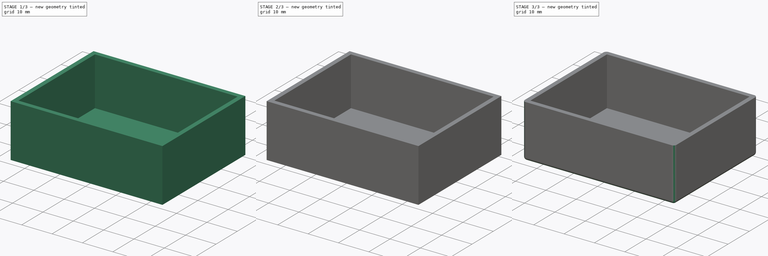
[diagram: build sequence overview — one tinted view per stage of 3, left to right]
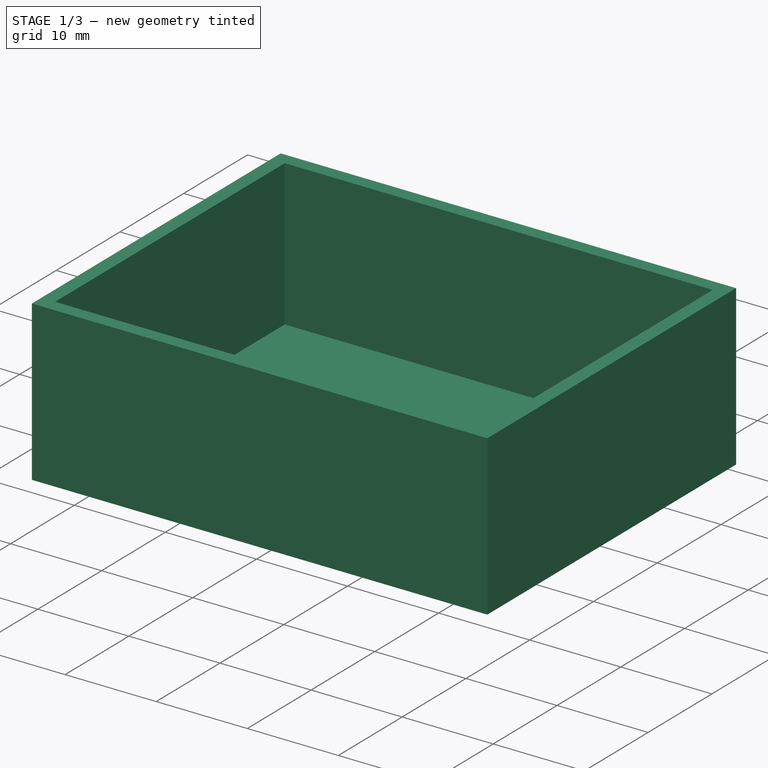
[diagram: stage 1 of 3 — iso view after this stage's code; geometry added in this stage tinted green]
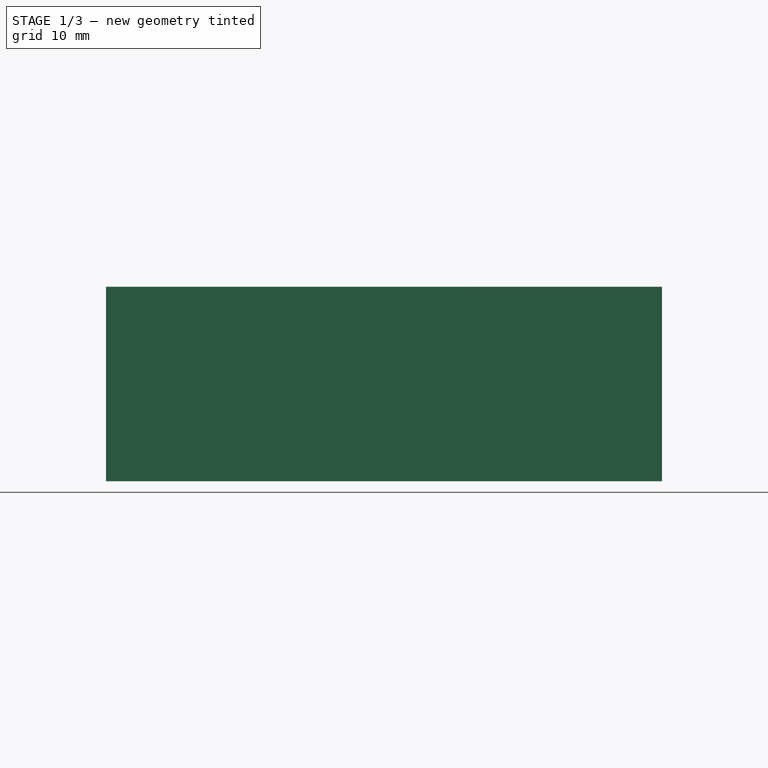
[diagram: stage 1 of 3 — front view after this stage's code; geometry added in this stage tinted green]
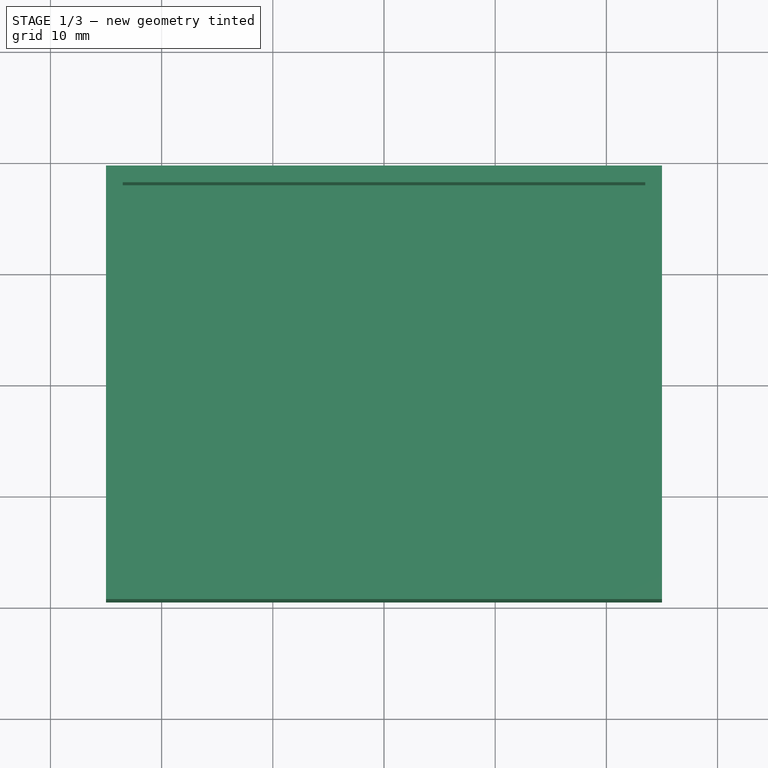
[diagram: stage 1 of 3 — top view after this stage's code; geometry added in this stage tinted green]
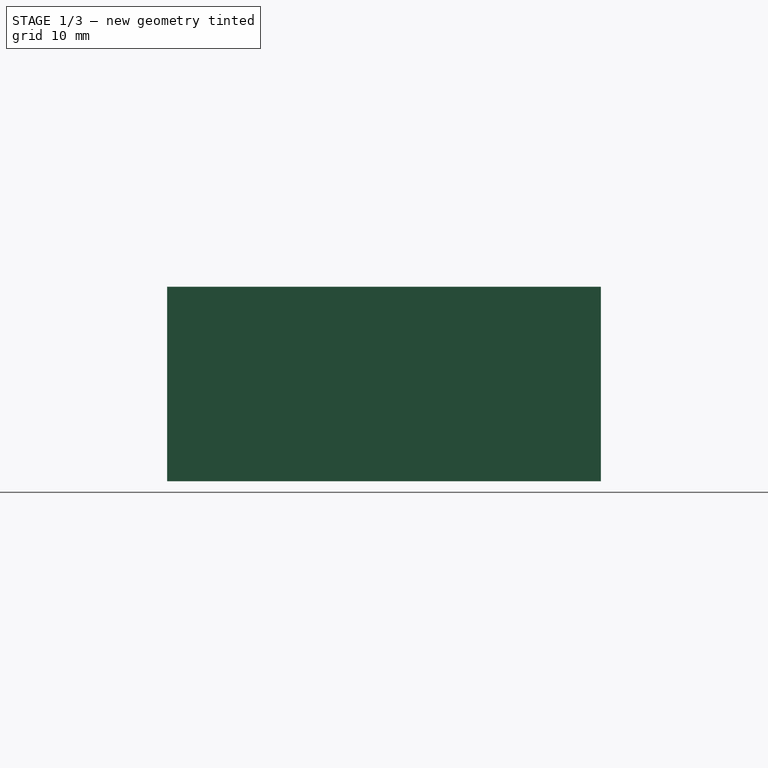
[diagram: stage 1 of 3 — right view after this stage's code; geometry added in this stage tinted green]
FCSTD DOCUMENT  (FreeCAD 0.21R33668 +26 (Git))
Label: SmartListener_Enclosure
License: All rights reserved
LicenseURL: https://en.wikipedia.org/wiki/All_rights_reserved
objects: Sketcher::SketchObject×7, PartDesign::Pocket×3, PartDesign::Pad×1, PartDesign::Fillet×1, PartDesign::Body×1
note: 18 computed .brp shape members not serialized (recipe doc carries the construction recipe); baked Part::Feature solids carry a one-line shape summary decoded from their .brp

FEATURE [Sketcher::SketchObject] Sketch
  FullyConstrained = true
  MapMode = 5
  Support = -> [XY_Plane]
  sketch-geometry (4):
    g0: LineSegment StartX=-25 StartY=19.5 StartZ=0 EndX=25 EndY=19.5 EndZ=0
    g1: LineSegment StartX=25 StartY=19.5 StartZ=0 EndX=25 EndY=-19.5 EndZ=0
    g2: LineSegment StartX=25 StartY=-19.5 StartZ=0 EndX=-25 EndY=-19.5 EndZ=0
    g3: LineSegment StartX=-25 StartY=-19.5 StartZ=0 EndX=-25 EndY=19.5 EndZ=0
  constraints (12):
    c: Coincident(g0,g1)
    c: Coincident(g1,g2)
    c: Coincident(g2,g3)
    c: Coincident(g3,g0)
    c: Horizontal(g0)
    c: Horizontal(g2)
    c: Vertical(g1)
    c: Vertical(g3)
    c: DistanceX(g0,g-1) = 25
    c: DistanceX(g-1,g0) = 25
    c: DistanceY(g-1,g0) = 19.5
    c: DistanceY(g2,g-1) = 19.5
FEATURE [PartDesign::Pad] Pad
  Direction = (0,0,1)
  Length = 17.5
  Length2 = 10
  Profile = -> Sketch
  ReferenceAxis = -> Sketch [N_Axis]
  Type = 0
FEATURE [Sketcher::SketchObject] Sketch001
  FullyConstrained = true
  MapMode = 5
  Placement = pos=(0,0,17.5) rot=(0,0,1;0rad)
  Support = -> [Pad]
  sketch-geometry (4):
    g0: LineSegment StartX=-23.5 StartY=18 StartZ=0 EndX=23.5 EndY=18 EndZ=0
    g1: LineSegment StartX=23.5 StartY=18 StartZ=0 EndX=23.5 EndY=-18 EndZ=0
    g2: LineSegment StartX=23.5 StartY=-18 StartZ=0 EndX=-23.5 EndY=-18 EndZ=0
    g3: LineSegment StartX=-23.5 StartY=-18 StartZ=0 EndX=-23.5 EndY=18 EndZ=0
  constraints (11):
    c: Coincident(g0,g1)
    c: Coincident(g1,g2)
    c: Coincident(g2,g3)
    c: Coincident(g3,g0)
    c: Horizontal(g0)
    c: Horizontal(g2)
    c: Vertical(g1)
    c: Vertical(g3)
    c: Symmetric(g1,g0,g-1)
    c: DistanceX(g0,g0) = 47
    c: DistanceY(g1,g0) = 36
FEATURE [PartDesign::Pocket] Pocket
  BaseFeature = -> Pad
  Direction = (0,0,-1)
  Length = 16
  Length2 = 5
  Profile = -> Sketch001
  ReferenceAxis = -> Sketch001 [N_Axis]
  Type = 0
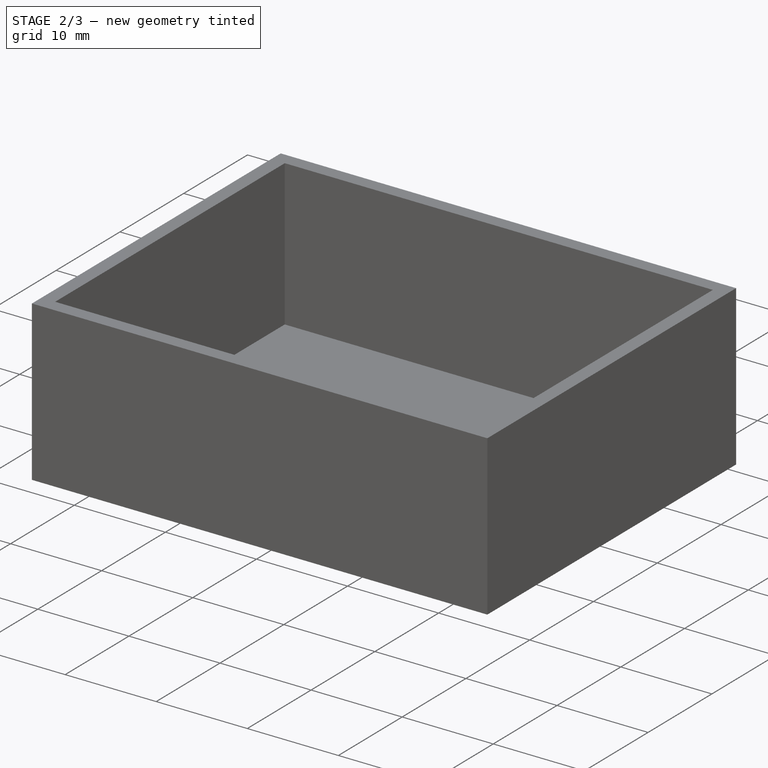
[diagram: stage 2 of 3 — iso view after this stage's code; geometry added in this stage tinted green]
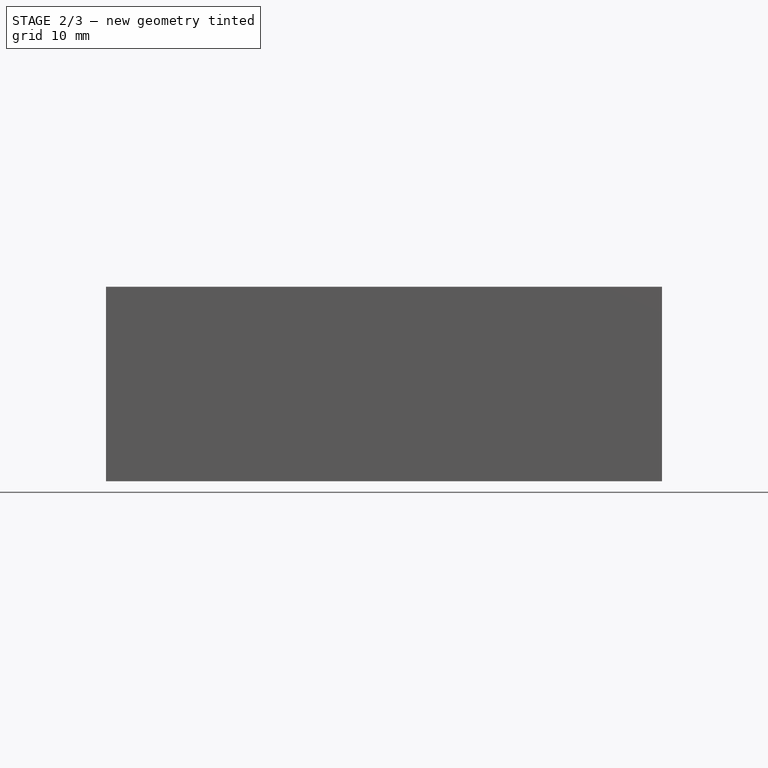
[diagram: stage 2 of 3 — front view after this stage's code; geometry added in this stage tinted green]
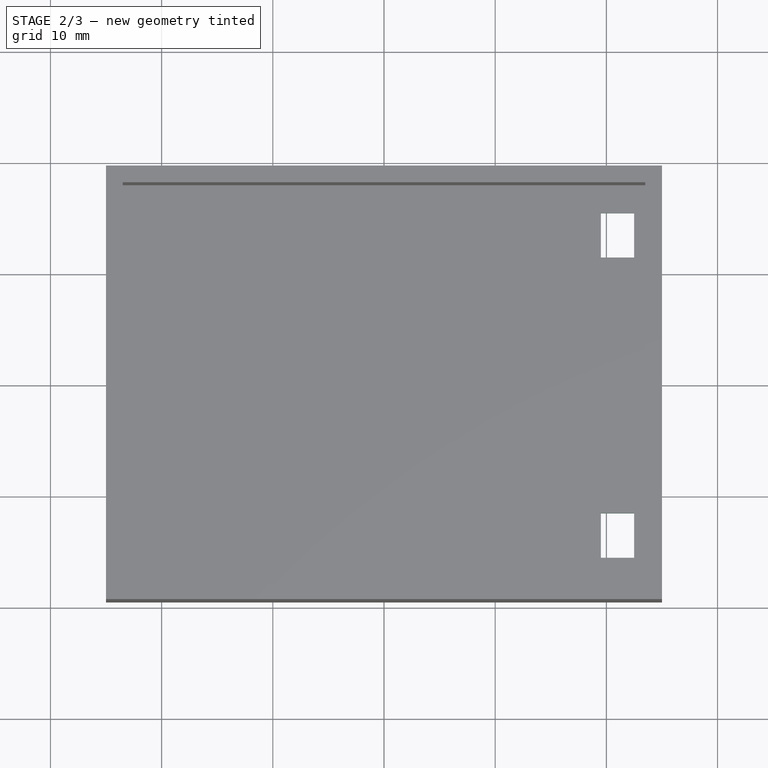
[diagram: stage 2 of 3 — top view after this stage's code; geometry added in this stage tinted green]
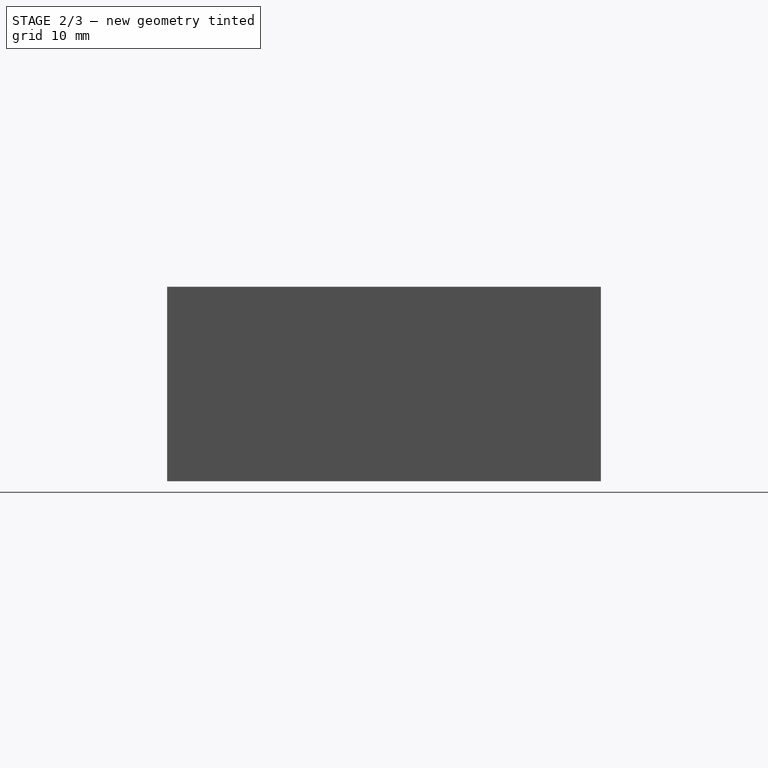
[diagram: stage 2 of 3 — right view after this stage's code; geometry added in this stage tinted green]
FEATURE [Sketcher::SketchObject] Sketch002
  ExternalGeometry = -> [Pocket]
  FullyConstrained = true
  MapMode = 5
  Placement = pos=(0,0,0) rot=(1,0,0;3.14159rad)
  Support = -> [Pocket]
  sketch-geometry (8):
    g0: LineSegment StartX=22.5 StartY=15.5 StartZ=0 EndX=19.5 EndY=15.5 EndZ=0
    g1: LineSegment StartX=19.5 StartY=15.5 StartZ=0 EndX=19.5 EndY=11.5 EndZ=0
    g2: LineSegment StartX=19.5 StartY=11.5 StartZ=0 EndX=22.5 EndY=11.5 EndZ=0
    g3: LineSegment StartX=22.5 StartY=11.5 StartZ=0 EndX=22.5 EndY=15.5 EndZ=0
    g4: LineSegment StartX=22.5 StartY=-11.5 StartZ=0 EndX=19.5 EndY=-11.5 EndZ=0
    g5: LineSegment StartX=19.5 StartY=-11.5 StartZ=0 EndX=19.5 EndY=-15.5 EndZ=0
    g6: LineSegment StartX=19.5 StartY=-15.5 StartZ=0 EndX=22.5 EndY=-15.5 EndZ=0
    g7: LineSegment StartX=22.5 StartY=-15.5 StartZ=0 EndX=22.5 EndY=-11.5 EndZ=0
  constraints (24):
    c: Coincident(g0,g1)
    c: Coincident(g1,g2)
    c: Coincident(g2,g3)
    c: Coincident(g3,g0)
    c: Horizontal(g0)
    c: Horizontal(g2)
    c: Vertical(g1)
    c: Vertical(g3)
    c: Coincident(g4,g5)
    c: Coincident(g5,g6)
    c: Coincident(g6,g7)
    c: Coincident(g7,g4)
    c: Horizontal(g4)
    c: Horizontal(g6)
    c: Vertical(g5)
    c: Vertical(g7)
    c: DistanceX(g0,g-6) = 2.5
    c: DistanceY(g0,g-6) = 4
    c: DistanceY(g-6,g6) = 4
    c: DistanceX(g4,g-6) = 2.5
    c: DistanceX(g1,g2) = 3
    c: DistanceY(g1,g0) = 4
    c: DistanceY(g5,g5) = 4
    c: DistanceX(g4,g4) = 3
FEATURE [PartDesign::Pocket] Pocket001
  BaseFeature = -> Pocket
  Direction = (0,0,1)
  Length = 1.6
  Length2 = 5
  Profile = -> Sketch002
  ReferenceAxis = -> Sketch002 [N_Axis]
  Type = 0
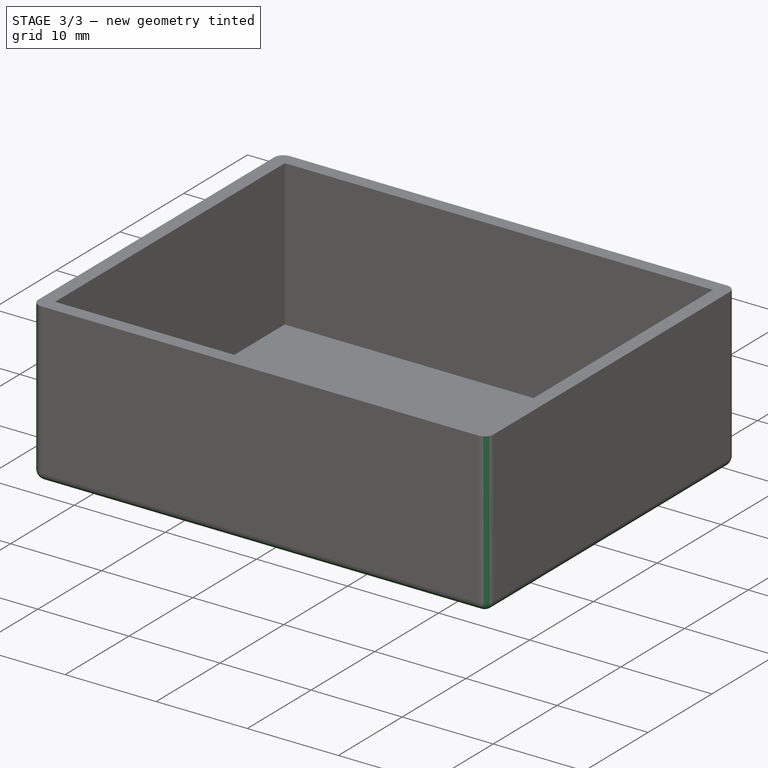
[diagram: stage 3 of 3 — iso view after this stage's code; geometry added in this stage tinted green]
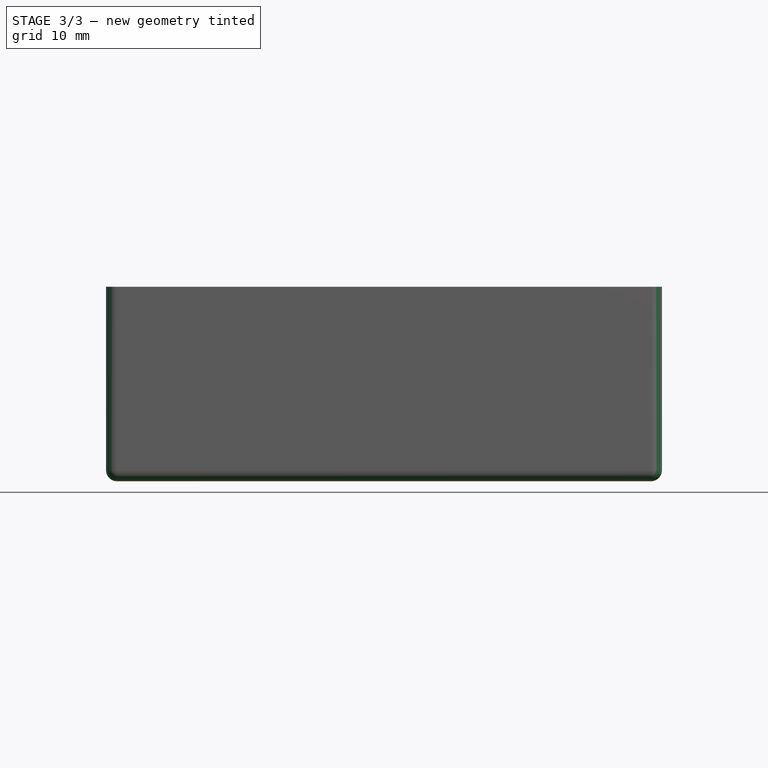
[diagram: stage 3 of 3 — front view after this stage's code; geometry added in this stage tinted green]
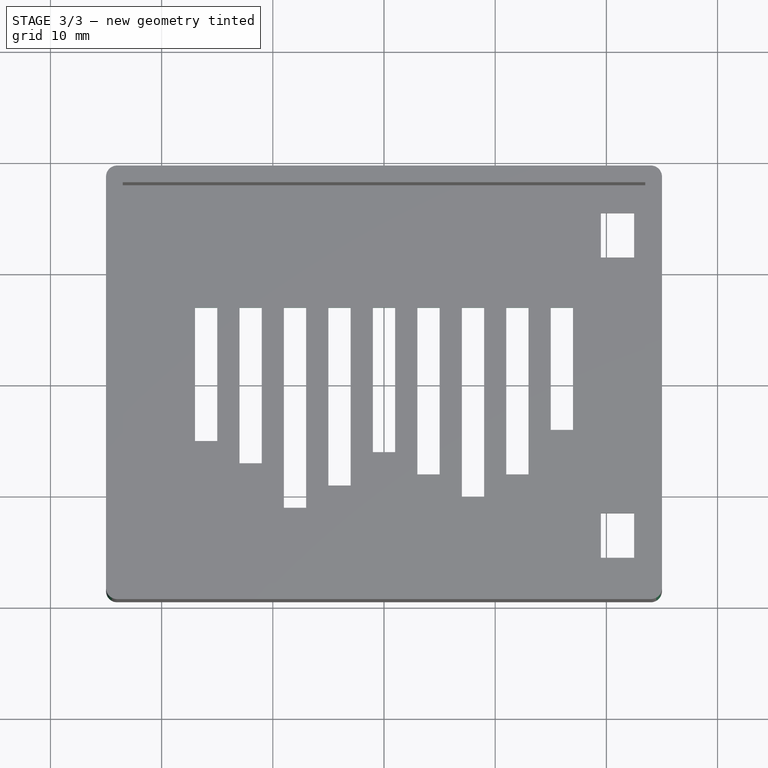
[diagram: stage 3 of 3 — top view after this stage's code; geometry added in this stage tinted green]
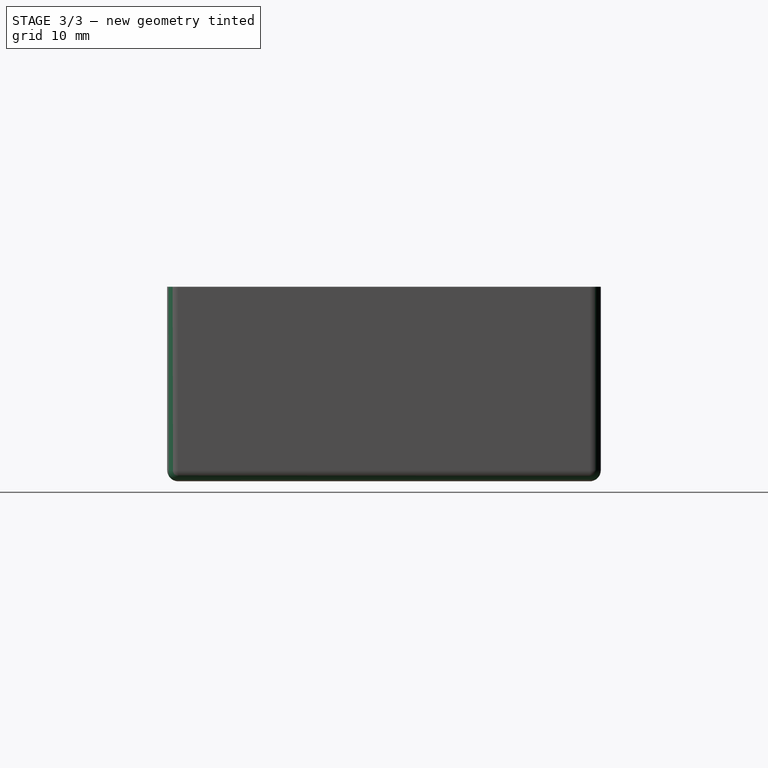
[diagram: stage 3 of 3 — right view after this stage's code; geometry added in this stage tinted green]
FEATURE [Sketcher::SketchObject] Sketch003
  FullyConstrained = true
  MapMode = 5
  Placement = pos=(0,0,0) rot=(1,0,0;3.14159rad)
  Support = -> [Pocket001]
FEATURE [Sketcher::SketchObject] Sketch004
  FullyConstrained = true
  MapMode = 5
  Placement = pos=(0,0,0) rot=(1,0,0;1.5708rad)
  Support = -> [XZ_Plane]
FEATURE [Sketcher::SketchObject] Sketch005
  FullyConstrained = true
  MapMode = 5
  Placement = pos=(0,0,1.5) rot=(0,0,1;0rad)
  Support = -> [Pocket001]
FEATURE [Sketcher::SketchObject] Sketch006
  ExternalGeometry = -> [Pocket001]
  FullyConstrained = true
  MapMode = 5
  Placement = pos=(0,0,0) rot=(1,0,0;3.14159rad)
  Support = -> [Pocket001]
  sketch-geometry (36):
    g0: LineSegment StartX=-15 StartY=5 StartZ=0 EndX=-17 EndY=5 EndZ=0
    g1: LineSegment StartX=-17 StartY=5 StartZ=0 EndX=-17 EndY=-7 EndZ=0
    g2: LineSegment StartX=-17 StartY=-7 StartZ=0 EndX=-15 EndY=-7 EndZ=0
    g3: LineSegment StartX=-15 StartY=-7 StartZ=0 EndX=-15 EndY=5 EndZ=0
    g4: LineSegment StartX=-13 StartY=7 StartZ=0 EndX=-11 EndY=7 EndZ=0
    g5: LineSegment StartX=-11 StartY=7 StartZ=0 EndX=-11 EndY=-7 EndZ=0
    g6: LineSegment StartX=-11 StartY=-7 StartZ=0 EndX=-13 EndY=-7 EndZ=0
    g7: LineSegment StartX=-13 StartY=-7 StartZ=0 EndX=-13 EndY=7 EndZ=0
    g8: LineSegment StartX=-9 StartY=11 StartZ=0 EndX=-7 EndY=11 EndZ=0
    g9: LineSegment StartX=-7 StartY=11 StartZ=0 EndX=-7 EndY=-7 EndZ=0
    g10: LineSegment StartX=-7 StartY=-7 StartZ=0 EndX=-9 EndY=-7 EndZ=0
    g11: LineSegment StartX=-9 StartY=-7 StartZ=0 EndX=-9 EndY=11 EndZ=0
    g12: LineSegment StartX=-5 StartY=9 StartZ=0 EndX=-3 EndY=9 EndZ=0
    g13: LineSegment StartX=-3 StartY=9 StartZ=0 EndX=-3 EndY=-7 EndZ=0
    g14: LineSegment StartX=-3 StartY=-7 StartZ=0 EndX=-5 EndY=-7 EndZ=0
    g15: LineSegment StartX=-5 StartY=-7 StartZ=0 EndX=-5 EndY=9 EndZ=0
    g16: LineSegment StartX=-1 StartY=6 StartZ=0 EndX=1 EndY=6 EndZ=0
    g17: LineSegment StartX=1 StartY=6 StartZ=0 EndX=1 EndY=-7 EndZ=0
    g18: LineSegment StartX=1 StartY=-7 StartZ=0 EndX=-1 EndY=-7 EndZ=0
    g19: LineSegment StartX=-1 StartY=-7 StartZ=0 EndX=-1 EndY=6 EndZ=0
    g20: LineSegment StartX=3 StartY=8 StartZ=0 EndX=5 EndY=8 EndZ=0
    g21: LineSegment StartX=5 StartY=8 StartZ=0 EndX=5 EndY=-7 EndZ=0
    g22: LineSegment StartX=5 StartY=-7 StartZ=0 EndX=3 EndY=-7 EndZ=0
    g23: LineSegment StartX=3 StartY=-7 StartZ=0 EndX=3 EndY=8 EndZ=0
    g24: LineSegment StartX=7 StartY=10 StartZ=0 EndX=9 EndY=10 EndZ=0
    g25: LineSegment StartX=9 StartY=10 StartZ=0 EndX=9 EndY=-7 EndZ=0
    g26: LineSegment StartX=9 StartY=-7 StartZ=0 EndX=7 EndY=-7 EndZ=0
    g27: LineSegment StartX=7 StartY=-7 StartZ=0 EndX=7 EndY=10 EndZ=0
    g28: LineSegment StartX=11 StartY=8 StartZ=0 EndX=13 EndY=8 EndZ=0
    g29: LineSegment StartX=13 StartY=8 StartZ=0 EndX=13 EndY=-7 EndZ=0
    g30: LineSegment StartX=13 StartY=-7 StartZ=0 EndX=11 EndY=-7 EndZ=0
    g31: LineSegment StartX=11 StartY=-7 StartZ=0 EndX=11 EndY=8 EndZ=0
    g32: LineSegment StartX=15 StartY=4 StartZ=0 EndX=17 EndY=4 EndZ=0
    g33: LineSegment StartX=17 StartY=4 StartZ=0 EndX=17 EndY=-7 EndZ=0
    g34: LineSegment StartX=17 StartY=-7 StartZ=0 EndX=15 EndY=-7 EndZ=0
    g35: LineSegment StartX=15 StartY=-7 StartZ=0 EndX=15 EndY=4 EndZ=0
  constraints (108):
    c: Coincident(g0,g1)
    c: Coincident(g1,g2)
    c: Coincident(g2,g3)
    c: Coincident(g3,g0)
    c: Horizontal(g0)
    c: Horizontal(g2)
    c: Vertical(g1)
    c: Vertical(g3)
    c: Coincident(g4,g5)
    c: Coincident(g5,g6)
    c: Coincident(g6,g7)
    c: Coincident(g7,g4)
    c: Horizontal(g4)
    c: Horizontal(g6)
    c: Vertical(g5)
    c: Vertical(g7)
    c: Coincident(g8,g9)
    c: Coincident(g9,g10)
    c: Coincident(g10,g11)
    c: Coincident(g11,g8)
    c: Horizontal(g8)
    c: Horizontal(g10)
    c: Vertical(g9)
    c: Vertical(g11)
    c: Coincident(g12,g13)
    c: Coincident(g13,g14)
    c: Coincident(g14,g15)
    c: Coincident(g15,g12)
    c: Horizontal(g12)
    c: Horizontal(g14)
    c: Vertical(g13)
    c: Vertical(g15)
    c: Coincident(g16,g17)
    c: Coincident(g17,g18)
    c: Coincident(g18,g19)
    c: Coincident(g19,g16)
    c: Horizontal(g16)
    c: Horizontal(g18)
    c: Vertical(g17)
    c: Vertical(g19)
    c: Coincident(g20,g21)
    c: Coincident(g21,g22)
    c: Coincident(g22,g23)
    c: Coincident(g23,g20)
    c: Horizontal(g20)
    c: Horizontal(g22)
    c: Vertical(g21)
    c: Vertical(g23)
    c: Coincident(g24,g25)
    c: Coincident(g25,g26)
    c: Coincident(g26,g27)
    c: Coincident(g27,g24)
    c: Horizontal(g24)
    c: Horizontal(g26)
    c: Vertical(g25)
    c: Vertical(g27)
    c: Coincident(g28,g29)
    c: Coincident(g29,g30)
    c: Coincident(g30,g31)
    c: Coincident(g31,g28)
    c: Horizontal(g28)
    c: Horizontal(g30)
    c: Vertical(g29)
    c: Vertical(g31)
    c: Coincident(g32,g33)
    c: Coincident(g33,g34)
    c: Coincident(g34,g35)
    c: Coincident(g35,g32)
    c: Horizontal(g32)
    c: Horizontal(g34)
    c: Vertical(g33)
    c: Vertical(g35)
    c: DistanceX(g0,g0) = 2
    c: DistanceX(g4,g4) = 2
    c: DistanceX(g8,g8) = 2
    c: DistanceX(g12,g12) = 2
    c: DistanceX(g16,g16) = 2
    c: DistanceX(g20,g20) = 2
    c: DistanceX(g24,g24) = 2
    c: DistanceX(g28,g28) = 2
    c: DistanceX(g32,g32) = 2
    c: DistanceY(g1,g1) = 12
    c: DistanceY(g7,g7) = 14
    c: DistanceY(g11,g11) = 18
    c: DistanceY(g15,g15) = 16
    c: DistanceY(g19,g19) = 13
    c: DistanceY(g23,g23) = 15
    c: DistanceY(g27,g27) = 17
    c: DistanceY(g31,g31) = 15
    c: DistanceY(g35,g35) = 11
    c: DistanceY(g18,g-1) = 7
    c: DistanceY(g14,g-1) = 7
    c: DistanceY(g10,g-1) = 7
    c: DistanceY(g6,g-1) = 7
    c: DistanceY(g1,g-1) = 7
    c: DistanceY(g22,g-1) = 7
    c: DistanceY(g26,g-1) = 7
    c: DistanceY(g30,g-1) = 7
    c: DistanceY(g34,g-1) = 7
    c: DistanceX(g18,g-1) = 1
    c: DistanceX(g13,g18) = 2
    c: DistanceX(g9,g14) = 2
    c: DistanceX(g5,g10) = 2
    c: DistanceX(g2,g6) = 2
    c: DistanceX(g17,g22) = 2
    c: DistanceX(g21,g26) = 2
    c: DistanceX(g25,g30) = 2
    c: DistanceX(g29,g34) = 2
FEATURE [PartDesign::Pocket] Pocket002
  BaseFeature = -> Pocket001
  Direction = (0,0,1)
  Length = 1.7
  Length2 = 5
  Profile = -> Sketch006
  ReferenceAxis = -> Sketch006 [N_Axis]
  Type = 0
FEATURE [PartDesign::Fillet] Fillet
  Base = -> Pocket002 [Edge8,Edge11,Edge9,Edge3,Edge2,Edge6,Edge1,Edge5]
  BaseFeature = -> Pocket002
  Radius = 1
  SupportTransform = false
  UseAllEdges = false
FEATURE [PartDesign::Body] Body
  Group = -> [Sketch,Pad,Sketch001,Pocket,Sketch002,Pocket001,Sketch003,Sketch004,Sketch005,Sketch006,Pocket002,Fillet]
  Origin = -> Origin
  Tip = -> Fillet
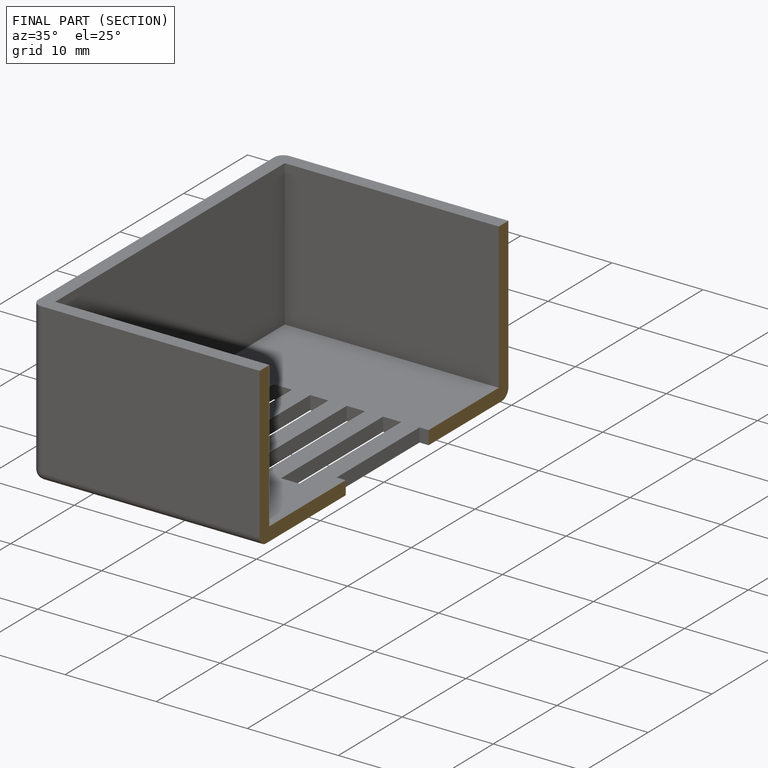
[diagram: finished part — half-section view (interior)]
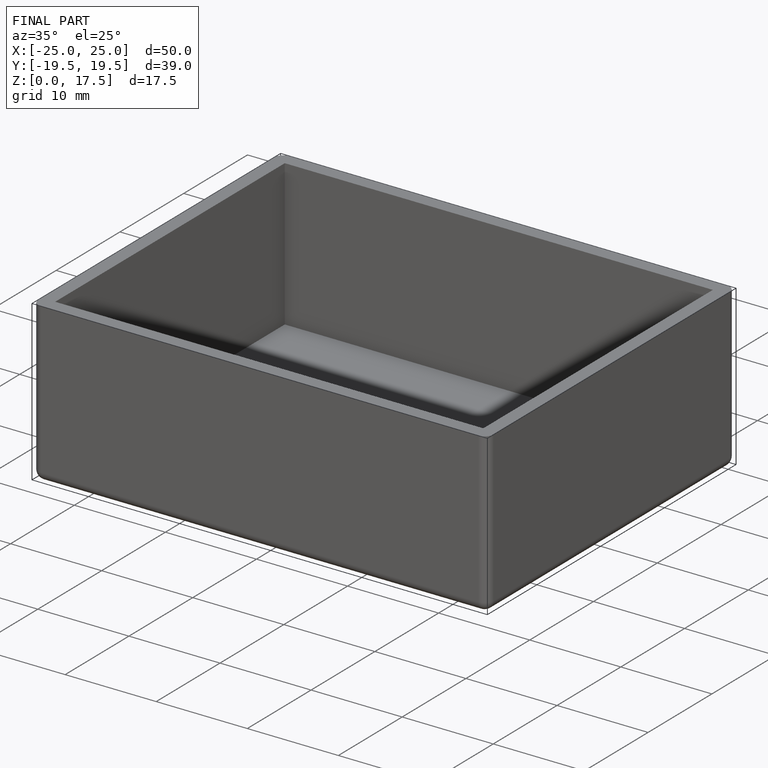
[diagram: finished part — iso view with bounding-box wireframe]
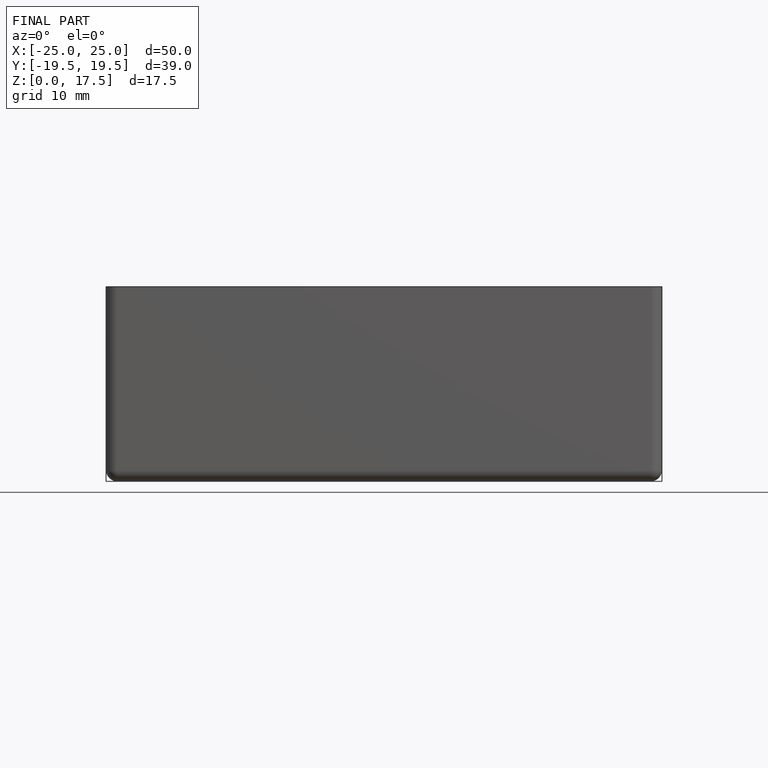
[diagram: finished part — front view with bounding-box wireframe]
